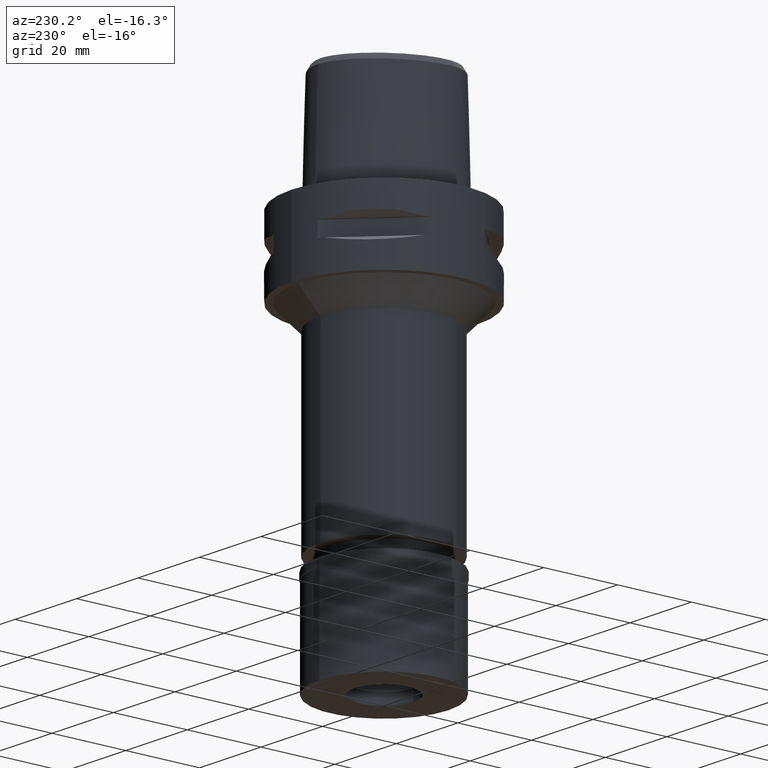
[diagram: clean part render]
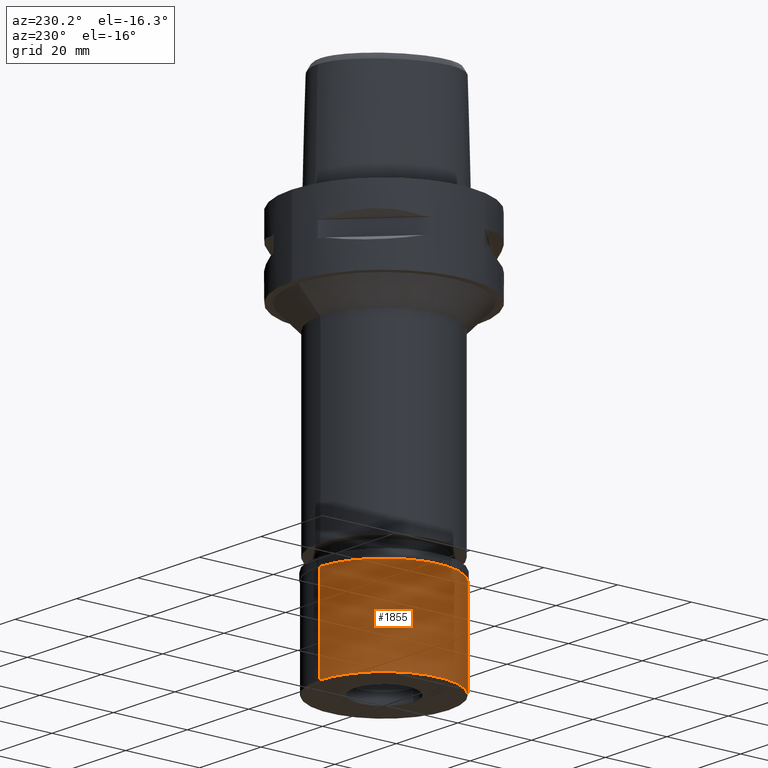
[diagram: same view with one face highlighted and labeled with its STEP entity id]
A machine part, auxiliary view. The second image highlights one B-rep face of the part: STEP entity #1855.
In plain terms, the highlighted cylindrical surface (partial cylindrical patch) has radius 17.5 mm, axis along (0, 0, -1).
Its self-contained STEP definition (entity closure, byte-faithful):
#252 = DIRECTION ( 'NONE',  ( 0.0000000000000000000, -1.000000000000000000, 0.0000000000000000000 ) ) ;
#870 = ORIENTED_EDGE ( 'NONE', *, *, #1877, .T. ) ;
#918 = CARTESIAN_POINT ( 'NONE',  ( 0.0000000000000000000, 17.50000000000000000, -2.100000000000000089 ) ) ;
#941 = DIRECTION ( 'NONE',  ( 0.0000000000000000000, 0.0000000000000000000, 1.000000000000000000 ) ) ;
#1270 = CARTESIAN_POINT ( 'NONE',  ( 0.0000000000000000000, 0.0000000000000000000, -26.70000000000000284 ) ) ;
#1318 = DIRECTION ( 'NONE',  ( 0.0000000000000000000, 0.0000000000000000000, -1.000000000000000000 ) ) ;
#1320 = CARTESIAN_POINT ( 'NONE',  ( 0.0000000000000000000, -17.50000000000000000, -2.100000000000000089 ) ) ;
#1351 = CARTESIAN_POINT ( 'NONE',  ( 0.0000000000000000000, 0.0000000000000000000, 0.0000000000000000000 ) ) ;
#1492 = DIRECTION ( 'NONE',  ( 0.0000000000000000000, 0.0000000000000000000, -1.000000000000000000 ) ) ;
#1747 = FACE_OUTER_BOUND ( 'NONE', #4223, .T. ) ;
#1855 = ADVANCED_FACE ( 'NONE', ( #1747 ), #2530, .T. ) ;
#1877 = EDGE_CURVE ( 'NONE', #2377, #4067, #3858, .T. ) ;
#2003 = ORIENTED_EDGE ( 'NONE', *, *, #4091, .T. ) ;
#2009 = VERTEX_POINT ( 'NONE', #4817 ) ;
#2025 = DIRECTION ( 'NONE',  ( 0.0000000000000000000, 0.0000000000000000000, -1.000000000000000000 ) ) ;
#2101 = VERTEX_POINT ( 'NONE', #3103 ) ;
#2279 = AXIS2_PLACEMENT_3D ( 'NONE', #2425, #1318, #252 ) ;
#2377 = VERTEX_POINT ( 'NONE', #1320 ) ;
#2425 = CARTESIAN_POINT ( 'NONE',  ( 0.0000000000000000000, 0.0000000000000000000, -2.100000000000000089 ) ) ;
#2446 = DIRECTION ( 'NONE',  ( 0.0000000000000000000, 1.000000000000000000, 0.0000000000000000000 ) ) ;
#2530 = CYLINDRICAL_SURFACE ( 'NONE', #4099, 17.50000000000000000 ) ;
#2824 = DIRECTION ( 'NONE',  ( 0.0000000000000000000, -1.000000000000000000, 0.0000000000000000000 ) ) ;
#2936 = AXIS2_PLACEMENT_3D ( 'NONE', #1270, #941, #2446 ) ;
#3096 = ORIENTED_EDGE ( 'NONE', *, *, #4047, .T. ) ;
#3103 = CARTESIAN_POINT ( 'NONE',  ( 0.0000000000000000000, -17.50000000000000000, -26.70000000000000284 ) ) ;
#3143 = VECTOR ( 'NONE', #2025, 1000.000000000000000 ) ;
#3312 = VECTOR ( 'NONE', #1492, 1000.000000000000000 ) ;
#3493 = ORIENTED_EDGE ( 'NONE', *, *, #4674, .F. ) ;
#3774 = LINE ( 'NONE', #4453, #3312 ) ;
#3858 = CIRCLE ( 'NONE', #2279, 17.50000000000000000 ) ;
#3860 = CARTESIAN_POINT ( 'NONE',  ( 0.0000000000000000000, 17.50000000000000000, -2.100000000000000089 ) ) ;
#4047 = EDGE_CURVE ( 'NONE', #2009, #2101, #4190, .T. ) ;
#4067 = VERTEX_POINT ( 'NONE', #918 ) ;
#4091 = EDGE_CURVE ( 'NONE', #4067, #2009, #4667, .T. ) ;
#4099 = AXIS2_PLACEMENT_3D ( 'NONE', #1351, #4677, #2824 ) ;
#4190 = CIRCLE ( 'NONE', #2936, 17.50000000000000000 ) ;
#4223 = EDGE_LOOP ( 'NONE', ( #3096, #3493, #870, #2003 ) ) ;
#4453 = CARTESIAN_POINT ( 'NONE',  ( 0.0000000000000000000, -17.50000000000000000, -2.100000000000000089 ) ) ;
#4667 = LINE ( 'NONE', #3860, #3143 ) ;
#4674 = EDGE_CURVE ( 'NONE', #2377, #2101, #3774, .T. ) ;
#4677 = DIRECTION ( 'NONE',  ( 0.0000000000000000000, 0.0000000000000000000, -1.000000000000000000 ) ) ;
#4817 = CARTESIAN_POINT ( 'NONE',  ( 0.0000000000000000000, 17.50000000000000000, -26.70000000000000284 ) ) ;